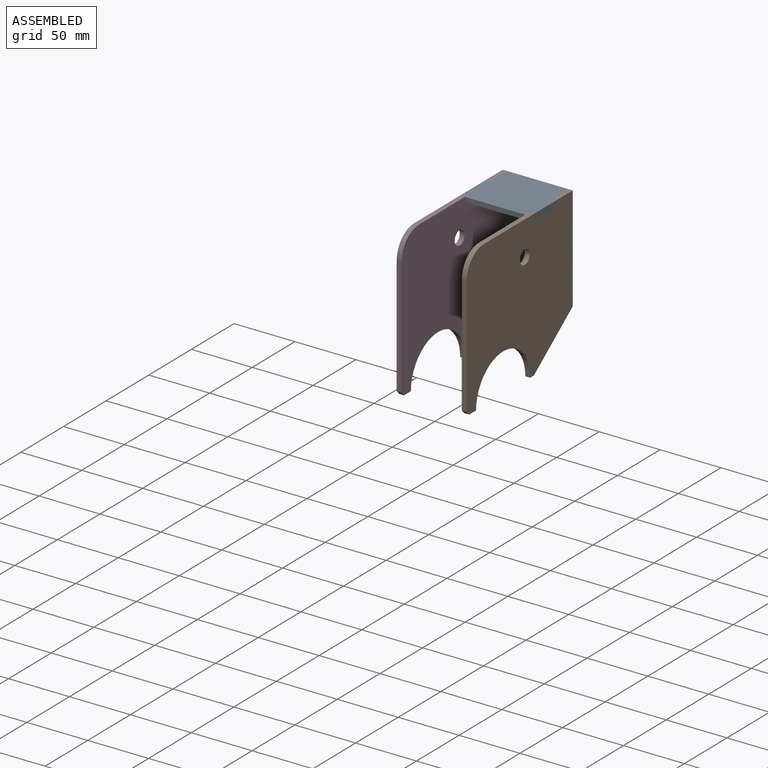
[diagram: assembled view]
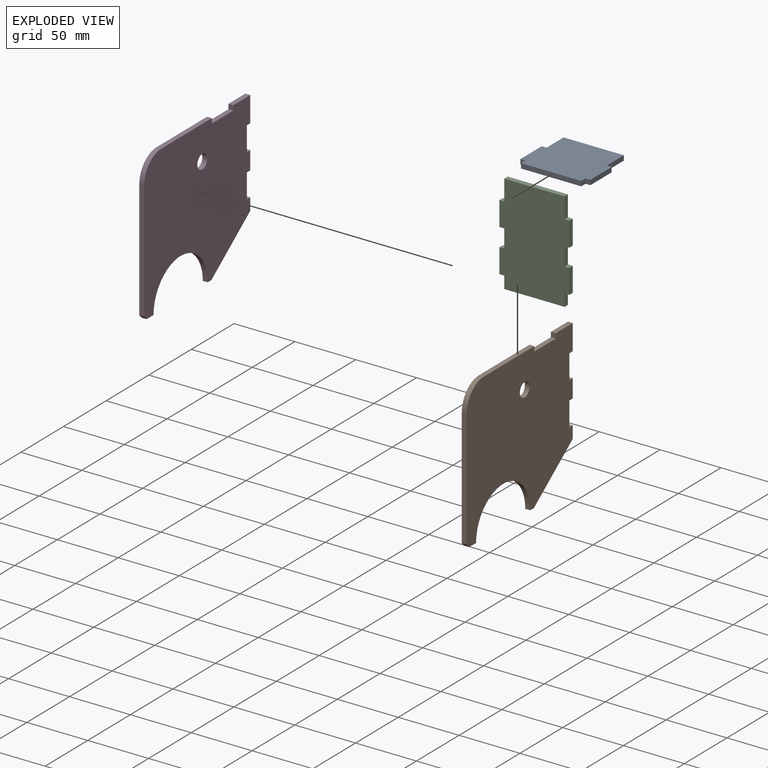
[diagram: exploded view]
GUIDED TOUR — MATED ASSEMBLY (Onshape document 6cddcfc2663b9519ffd29cb2, AutoMate assembly 6cddcfc2663b9519ffd29cb2_9bfa2e58879665fa19792456_93733b2ad54d25d2d5934ae4_default)

This assembly has 4 components, labeled P0..P3 below (a component is one placed occurrence of a part; the same part can appear more than once), held together by 4 mates. A mate is a constraint between two components; its type names the relative motion it leaves free:
  PARALLEL — keeps the two listed directions parallel,
  PLANAR — leaves sliding in the plane through the listed point (normal = the listed direction) and rotation about that normal free.
Axis/direction vectors are unit vectors and 'through' points are millimeter coordinates, both in the assembly's world frame.

MATES
  1. PARALLEL "Parallel 1": P3 <-> P0, direction (0.000, 1.000, 0.000) through (-20.65, 97.90, 61.11) mm
  2. PARALLEL "Parallel 2": P2 <-> P1, direction (0.000, 0.000, 1.000) through (28.85, 107.90, 48.61) mm
  3. PLANAR "Planar 2": P3 <-> P0, direction (0.000, 1.000, 0.000) through (-24.65, 75.40, 57.11) mm
  4. PLANAR "Planar 3": P2 <-> P3, direction (0.000, 0.000, 1.000) through (-20.65, 107.90, 12.61) mm

ASSEMBLY ORDER
  1. P2 — the base component [order verified]
  2. P0 [order verified]
  3. P1 [order verified]
  4. P3 [order verified]
Order-tag legend:
  [order verified] — this step's position reverses a verified removal order: the component was checked to insert without passing through the ones already placed.

Of the 4 components, 4 carry the full construction recipe — the FeatureScript program that regenerates the part's solid from scratch; the rest are supplied as boundary geometry only.
Each toured component is shown spotlighted twice — in the assembled view, then in the exploded view, where a leader line traces a displaced component back to its assembled socket (saturated green if recipe-attached, orange if geometry-only; every other component desaturated gray) — followed by its recipe or geometry summary and the mates that hold it.
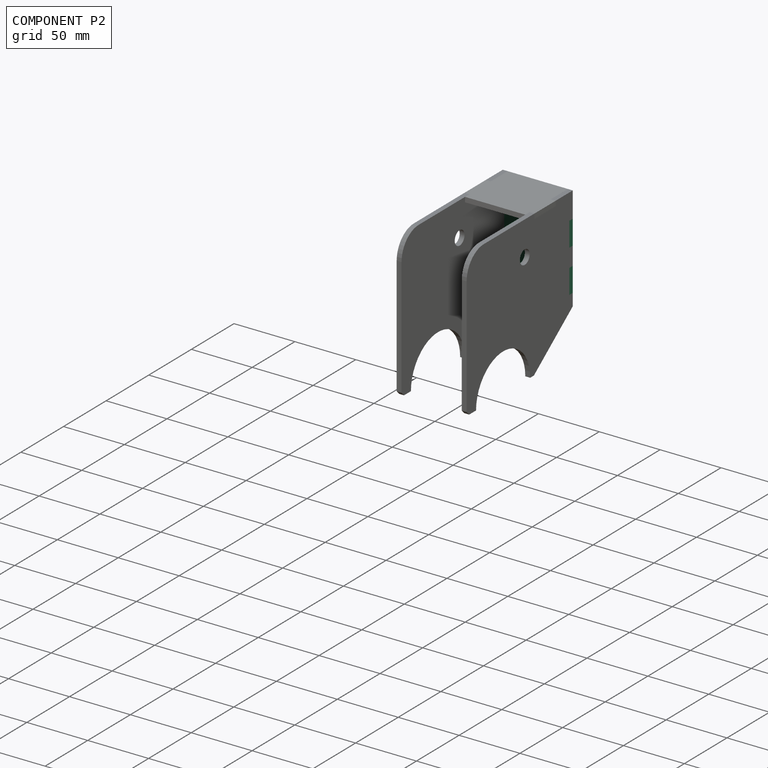
[diagram: component P2 — assembled]
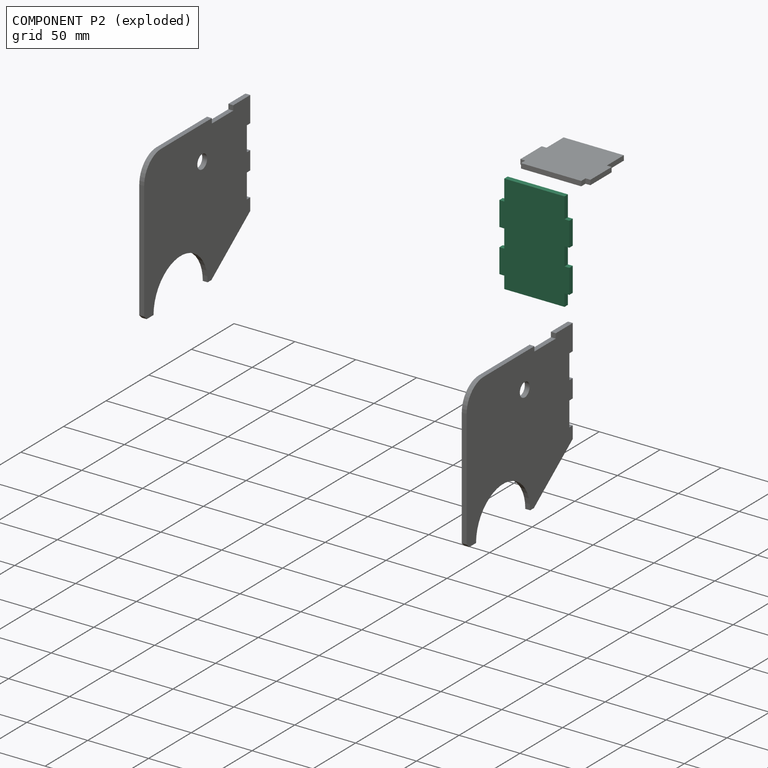
[diagram: component P2 — exploded]
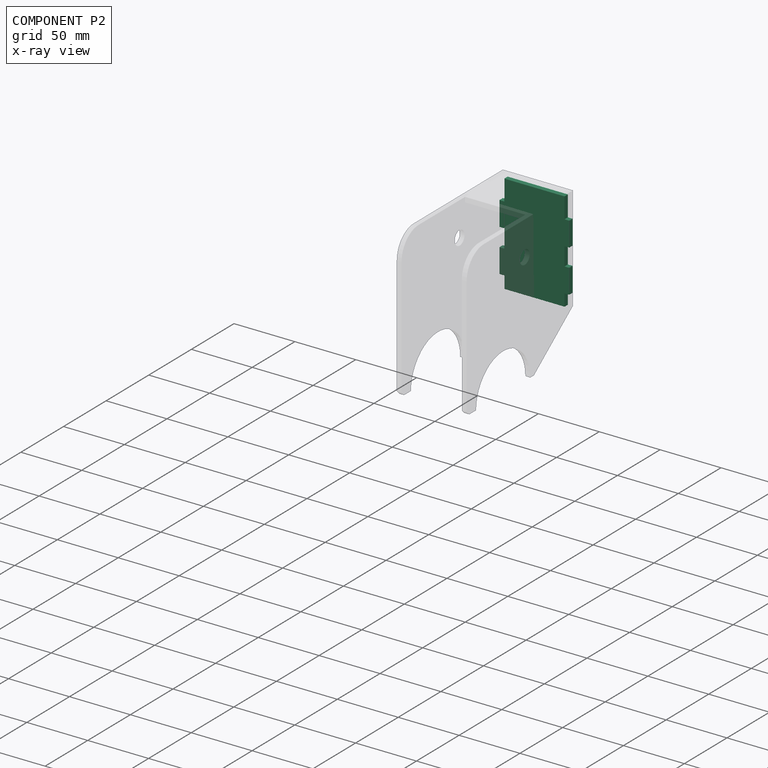
[diagram: component P2 — x-ray view]
COMPONENT P2 — recipe-attached (CADFS 00542748, mesh-verified: the recipe's output STEP matches this component's geometry to below the mesh-comparison resolution (tessellation chordal tolerance ~0.15 mm)).
Held by: PARALLEL mate "Parallel 2" to P1; PLANAR mate "Planar 3" to P3.
Construction recipe (FeatureScript — the CAD program that rebuilds this solid; sketch coordinates are in the units given by the * unit suffixes, e.g. mm):

FeatureScript 1511;
import(path : "onshape/std/geometry.fs", version : "1511.0");
import(path : "onshape/std/common.fs", version : "1511.0");
const mm = millimeter;
const VERTEX = EntityType.VERTEX;
const EDGE = EntityType.EDGE;
const FACE = EntityType.FACE;
const BODY = EntityType.BODY;
function v(x, y){return vector(x, y);}
function OD(order){return orderDisambiguation(order);}
function OSD(set){return originalSetDisambiguation(set);}
function TD(topology){return topologyDisambiguation(topology);}
function TDD(query){return trueDependencyDisambiguation(query);}
function sQuery(a, b, c) {return sketchEntityQuery(a, b, c);}

annotation { "Feature Type Name" : "Feature", "Feature Type Description" : "" }
export const myFeature = defineFeature(function(context is Context, id is Id, definition is map)
    precondition{}
    {
        {
            var Q0;
            Q0=qCreatedBy(makeId("Right.planeOp"),FACE);
            var sketch = newSketch(context, id + "F0", { "sketchPlane" : qUnion([Q0])});
            skLineSegment(sketch, "E0.top", {"start": v(-25.5, -34.8) * mm, "end": v(24, -34.8) * mm});
            skLineSegment(sketch, "E0.left", {"start": v(-25.5, 47.2) * mm, "end": v(-25.5, 37.2) * mm});
            skLineSegment(sketch, "E0.right", {"start": v(24, 47.2) * mm, "end": v(24, 37.2) * mm});
            skLineSegment(sketch, "E1.bottom", {"start": v(-25.5, 37.2) * mm, "end": v(-29.5, 37.2) * mm});
            skLineSegment(sketch, "E1.top", {"start": v(-25.5, 17.2) * mm, "end": v(-29.5, 17.2) * mm});
            skLineSegment(sketch, "E1.right", {"start": v(-29.5, 37.2) * mm, "end": v(-29.5, 17.2) * mm});
            skLineSegment(sketch, "E2.bottom", {"start": v(-25.5, 2.2) * mm, "end": v(-29.5, 2.2) * mm});
            skLineSegment(sketch, "E2.top", {"start": v(-25.5, -17.8) * mm, "end": v(-29.5, -17.8) * mm});
            skLineSegment(sketch, "E2.right", {"start": v(-29.5, 2.2) * mm, "end": v(-29.5, -17.8) * mm});
            skLineSegment(sketch, "E3.bottom", {"start": v(24, 37.2) * mm, "end": v(28, 37.2) * mm});
            skLineSegment(sketch, "E3.top", {"start": v(24, 17.2) * mm, "end": v(28, 17.2) * mm});
            skLineSegment(sketch, "E3.right", {"start": v(28, 37.2) * mm, "end": v(28, 17.2) * mm});
            skLineSegment(sketch, "E4.bottom", {"start": v(24, 2.2) * mm, "end": v(28, 2.2) * mm});
            skLineSegment(sketch, "E4.top", {"start": v(24, -17.8) * mm, "end": v(28, -17.8) * mm});
            skLineSegment(sketch, "E4.right", {"start": v(28, 2.2) * mm, "end": v(28, -17.8) * mm});
            skLineSegment(sketch, "E5.trimOffspring", {"start": v(-25.5, 17.2) * mm, "end": v(-25.5, 2.2) * mm});
            skLineSegment(sketch, "E6.trimOffspring", {"start": v(-25.5, -17.8) * mm, "end": v(-25.5, -34.8) * mm});
            skLineSegment(sketch, "E7.trimOffspring", {"start": v(24, -17.8) * mm, "end": v(24, -34.8) * mm});
            skLineSegment(sketch, "E8", {"start": v(24, 17.2) * mm, "end": v(24, 2.2) * mm});
            skLineSegment(sketch, "E9", {"start": v(-25.5, 47.2) * mm, "end": v(24, 47.2) * mm});
            skSolve(sketch);
        }
        {
            var Q0;
            Q0=makeQuery(id+"F0.imprint","IMPRINT",FACE,{"disambiguationData":[TD([[makeQuery(id+"F0.imprint","IMPRINT",EDGE,{"derivedFrom":sQuery(id+"F0.wireOp",EDGE,"E0.top")}),1.0]])]});
            extrude(context, id + "F1", {"entities" : qUnion([Q0]), "depth" : 4 * mm, "offsetDistance" : 25 * mm});
        }
    });
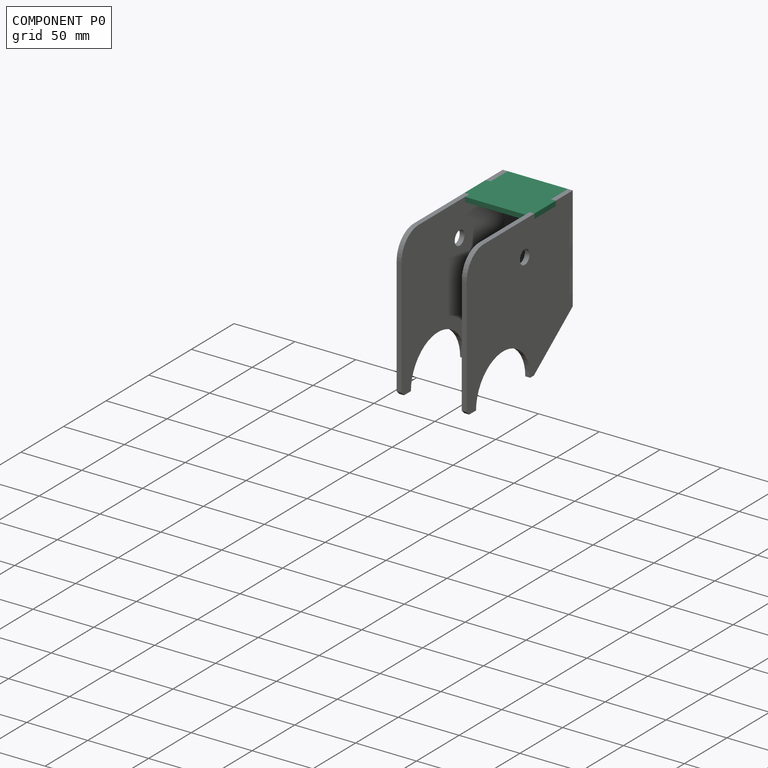
[diagram: component P0 — assembled]
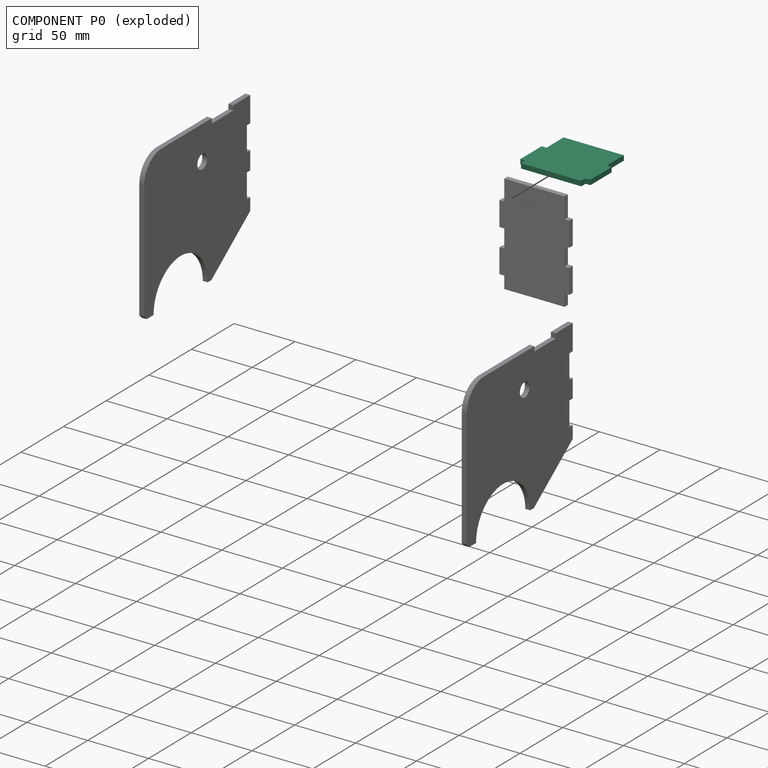
[diagram: component P0 — exploded]
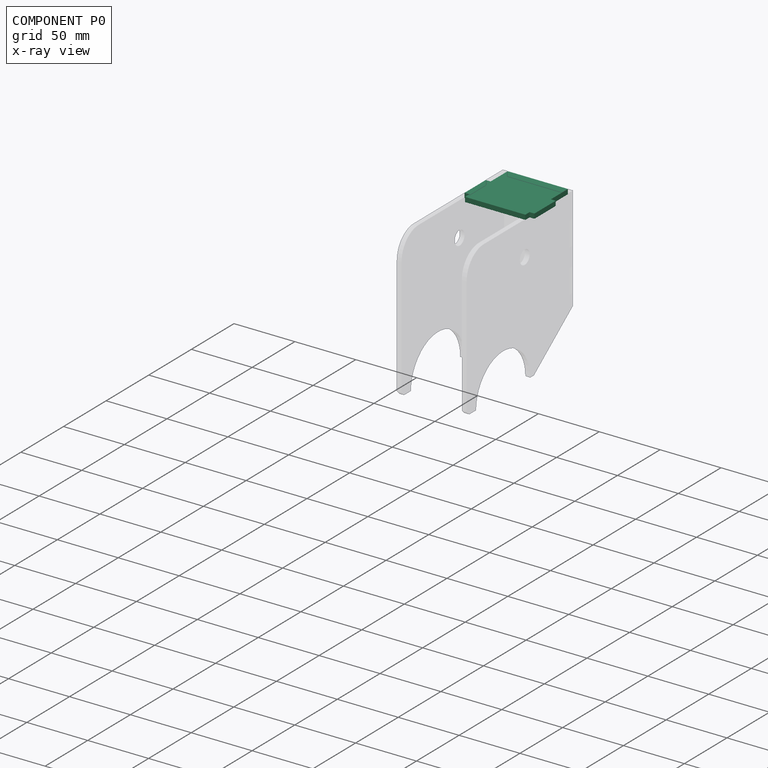
[diagram: component P0 — x-ray view]
COMPONENT P0 — recipe-attached (CADFS 00542747, mesh-verified: the recipe's output STEP matches this component's geometry to below the mesh-comparison resolution (tessellation chordal tolerance ~0.114 mm)).
Held by: PARALLEL mate "Parallel 1" to P3; PLANAR mate "Planar 2" to P3.
Construction recipe (FeatureScript — the CAD program that rebuilds this solid; sketch coordinates are in the units given by the * unit suffixes, e.g. mm):

FeatureScript 1511;
import(path : "onshape/std/geometry.fs", version : "1511.0");
import(path : "onshape/std/common.fs", version : "1511.0");
const mm = millimeter;
const VERTEX = EntityType.VERTEX;
const EDGE = EntityType.EDGE;
const FACE = EntityType.FACE;
const BODY = EntityType.BODY;
function v(x, y){return vector(x, y);}
function OD(order){return orderDisambiguation(order);}
function OSD(set){return originalSetDisambiguation(set);}
function TD(topology){return topologyDisambiguation(topology);}
function TDD(query){return trueDependencyDisambiguation(query);}
function sQuery(a, b, c) {return sketchEntityQuery(a, b, c);}

annotation { "Feature Type Name" : "Feature", "Feature Type Description" : "" }
export const myFeature = defineFeature(function(context is Context, id is Id, definition is map)
    precondition{}
    {
        {
            var Q0;
            Q0=qCreatedBy(makeId("Right.planeOp"),FACE);
            var sketch = newSketch(context, id + "F0", { "sketchPlane" : qUnion([Q0])});
            skLineSegment(sketch, "E0.top", {"start": v(-24.5, -45) * mm, "end": v(25, -45) * mm});
            skLineSegment(sketch, "E1.bottom", {"start": v(-24.5, 0) * mm, "end": v(-28.5, 0) * mm});
            skLineSegment(sketch, "E1.top", {"start": v(-24.5, -25) * mm, "end": v(-28.5, -25) * mm});
            skLineSegment(sketch, "E1.right", {"start": v(-28.5, 0) * mm, "end": v(-28.5, -25) * mm});
            skLineSegment(sketch, "E2.bottom", {"start": v(25, 0) * mm, "end": v(29, 0) * mm});
            skLineSegment(sketch, "E2.top", {"start": v(25, -25) * mm, "end": v(29, -25) * mm});
            skLineSegment(sketch, "E2.right", {"start": v(29, 0) * mm, "end": v(29, -25) * mm});
            skLineSegment(sketch, "E3.trimOffspring", {"start": v(-24.5, 5) * mm, "end": v(-24.5, 0) * mm});
            skLineSegment(sketch, "E4.trimOffspring", {"start": v(-24.5, -25) * mm, "end": v(-24.5, -45) * mm});
            skLineSegment(sketch, "E5.trimOffspring", {"start": v(25, 5) * mm, "end": v(25, 0) * mm});
            skLineSegment(sketch, "E6.trimOffspring", {"start": v(25, -25) * mm, "end": v(25, -45) * mm});
            skLineSegment(sketch, "E7", {"start": v(-24.5, 5) * mm, "end": v(25, 5) * mm});
            skSolve(sketch);
        }
        {
            var Q0;
            Q0 = qSketchRegion(id + "F0", true);
            extrude(context, id + "F1", {"entities" : qUnion([Q0]), "depth" : 4 * mm, "offsetDistance" : 25 * mm});
        }
    });
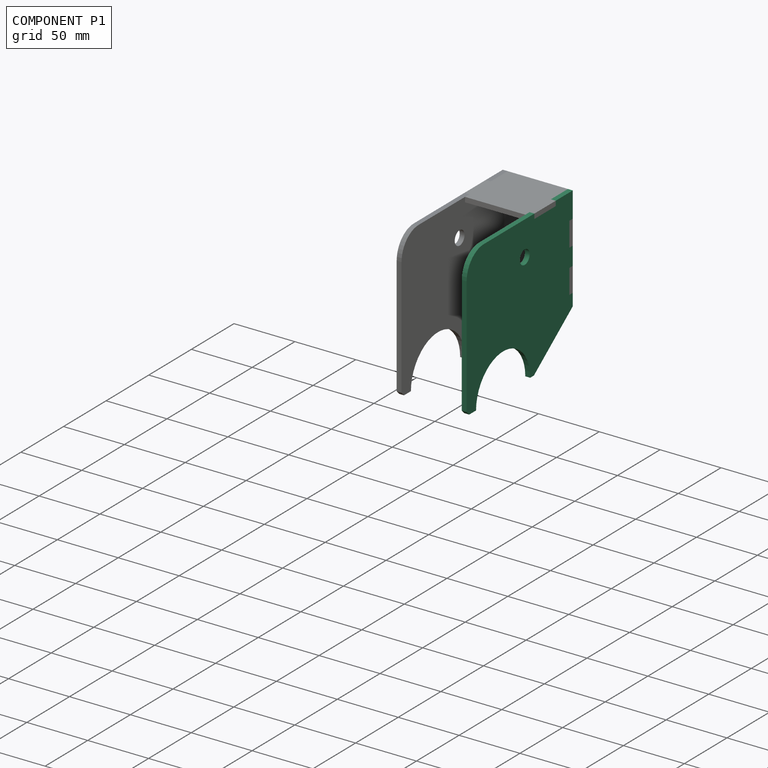
[diagram: component P1 — assembled]
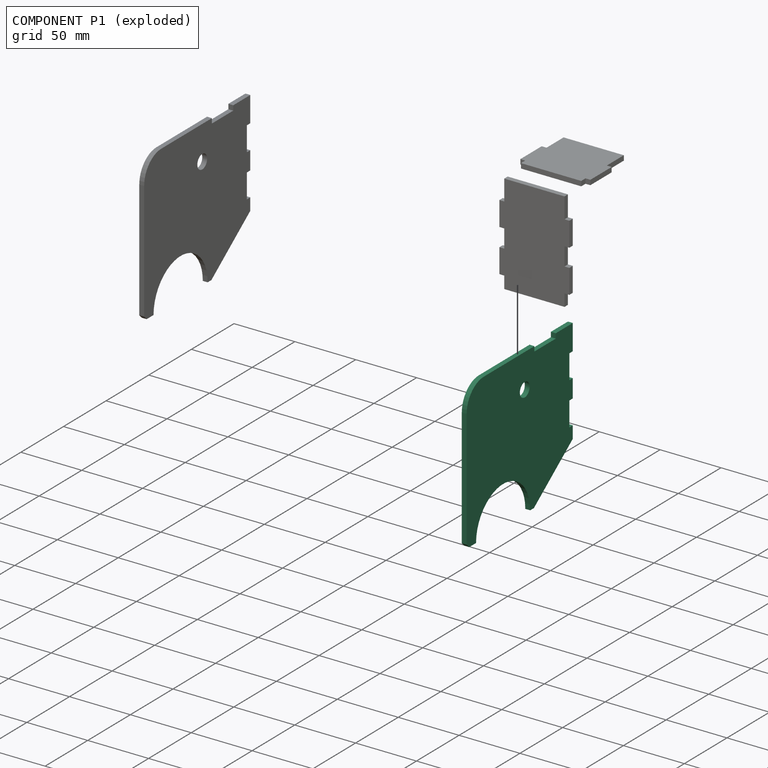
[diagram: component P1 — exploded]
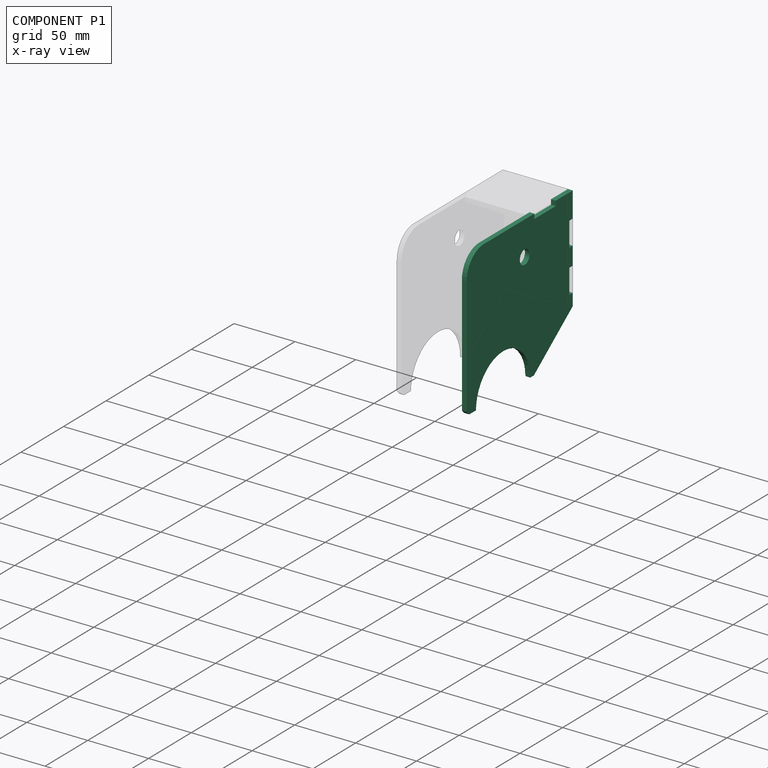
[diagram: component P1 — x-ray view]
COMPONENT P1 — recipe-attached (CADFS 00542749, mesh-verified: the recipe's output STEP matches this component's geometry to below the mesh-comparison resolution (tessellation chordal tolerance ~0.259 mm)).
Held by: PARALLEL mate "Parallel 2" to P2.
Construction recipe (FeatureScript — the CAD program that rebuilds this solid; sketch coordinates are in the units given by the * unit suffixes, e.g. mm):

FeatureScript 1511;
import(path : "onshape/std/geometry.fs", version : "1511.0");
import(path : "onshape/std/common.fs", version : "1511.0");
const mm = millimeter;
const VERTEX = EntityType.VERTEX;
const EDGE = EntityType.EDGE;
const FACE = EntityType.FACE;
const BODY = EntityType.BODY;
function v(x, y){return vector(x, y);}
function OD(order){return orderDisambiguation(order);}
function OSD(set){return originalSetDisambiguation(set);}
function TD(topology){return topologyDisambiguation(topology);}
function TDD(query){return trueDependencyDisambiguation(query);}
function sQuery(a, b, c) {return sketchEntityQuery(a, b, c);}

annotation { "Feature Type Name" : "Feature", "Feature Type Description" : "" }
export const myFeature = defineFeature(function(context is Context, id is Id, definition is map)
    precondition{}
    {
        {
            var Q0;
            Q0=qCreatedBy(makeId("Right.planeOp"),FACE);
            var sketch = newSketch(context, id + "F0", { "sketchPlane" : qUnion([Q0])});
            skArc(sketch, "E0", {"start": v(2.7, -74.14) * mm, "mid": v(-29.05, -42.41) * mm, "end": v(-60.8, -74.16) * mm});
            skLineSegment(sketch, "E1", {"start": v(-60.8, -74.16) * mm, "end": v(-68.8, -74.16) * mm});
            skLineSegment(sketch, "E2", {"start": v(52.7, 45.84) * mm, "end": v(52.7, 24.84) * mm});
            skCircle(sketch, "E3", {"center": v(-3.64, 17.84) * mm, "radius": 5.75 * mm});
            skPoint(sketch, "E4.orphan", {"position": v(52.7, -75.1) * mm});
            skLineSegment(sketch, "E5", {"start": v(-71.8, -71.16) * mm, "end": v(-68.8, -74.16) * mm});
            skPoint(sketch, "E6.orphan", {"position": v(-71.8, 45.84) * mm});
            skLineSegment(sketch, "E7.top", {"start": v(7.7, 41.84) * mm, "end": v(32.7, 41.84) * mm});
            skLineSegment(sketch, "E7.left", {"start": v(7.7, 45.84) * mm, "end": v(7.7, 41.84) * mm});
            skLineSegment(sketch, "E7.right", {"start": v(32.7, 45.84) * mm, "end": v(32.7, 41.84) * mm});
            skLineSegment(sketch, "E8.trimOffspring", {"start": v(32.7, 45.84) * mm, "end": v(52.7, 45.84) * mm});
            skLineSegment(sketch, "E9.bottom", {"start": v(52.7, 24.84) * mm, "end": v(48.7, 24.84) * mm});
            skLineSegment(sketch, "E9.top", {"start": v(52.7, 4.84) * mm, "end": v(48.7, 4.84) * mm});
            skLineSegment(sketch, "E9.right", {"start": v(48.7, 24.84) * mm, "end": v(48.7, 4.84) * mm});
            skLineSegment(sketch, "E10.bottom", {"start": v(52.7, -10.16) * mm, "end": v(48.7, -10.16) * mm});
            skLineSegment(sketch, "E10.top", {"start": v(52.7, -30.16) * mm, "end": v(48.7, -30.16) * mm});
            skLineSegment(sketch, "E10.right", {"start": v(48.7, -10.16) * mm, "end": v(48.7, -30.16) * mm});
            skLineSegment(sketch, "E11", {"start": v(-71.8, 25.84) * mm, "end": v(-71.8, -71.16) * mm});
            skLineSegment(sketch, "E12.trimOffspring", {"start": v(52.7, -30.16) * mm, "end": v(52.7, -40.16) * mm});
            skLineSegment(sketch, "E13", {"start": v(52.7, 4.84) * mm, "end": v(52.7, -10.16) * mm});
            skLineSegment(sketch, "E14", {"start": v(-51.8, 45.84) * mm, "end": v(7.7, 45.84) * mm});
            skLineSegment(sketch, "E15", {"start": v(2.7, -74.14) * mm, "end": v(7.1, -74.14) * mm});
            skLineSegment(sketch, "E16", {"start": v(7.1, -74.14) * mm, "end": v(52.7, -40.16) * mm});
            skArc(sketch, "E17", {"start": v(-51.8, 45.84) * mm, "mid": v(-65.93, 39.98) * mm, "end": v(-71.8, 25.84) * mm});
            skSolve(sketch);
        }
        {
            var Q0;
            Q0=makeQuery(id+"F0.imprint","IMPRINT",FACE,{"disambiguationData":[TD([[makeQuery(id+"F0.imprint","IMPRINT",EDGE,{"derivedFrom":sQuery(id+"F0.wireOp",EDGE,"E0")}),-1.0]])]});
            extrude(context, id + "F1", {"entities" : qUnion([Q0]), "depth" : 4 * mm, "offsetDistance" : 25 * mm});
        }
    });
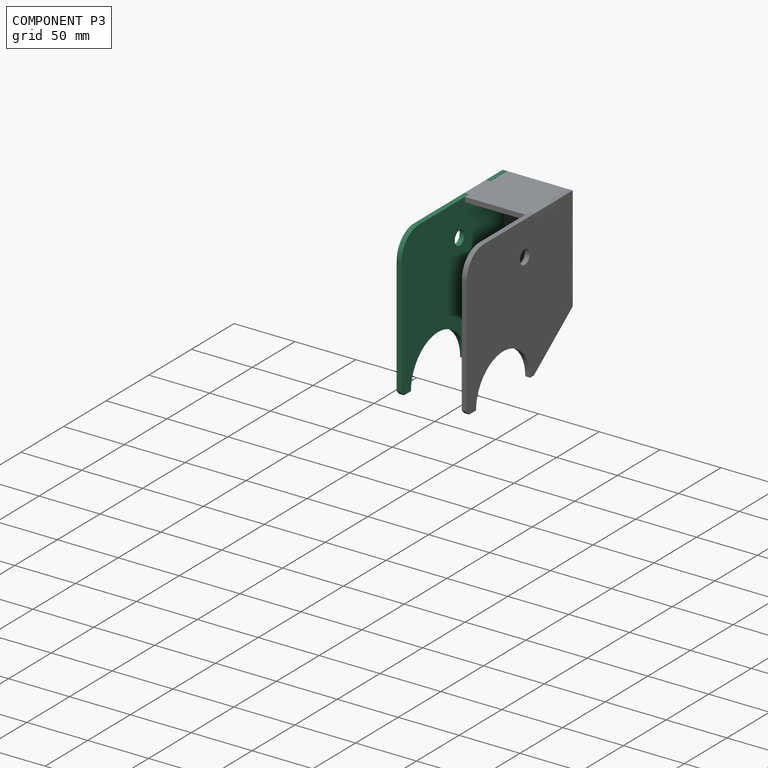
[diagram: component P3 — assembled]
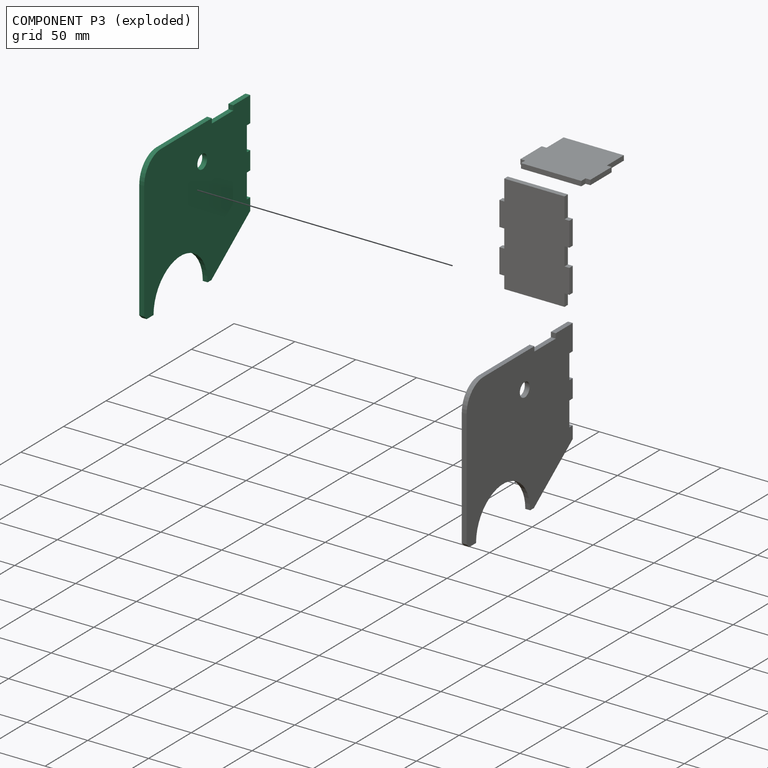
[diagram: component P3 — exploded]
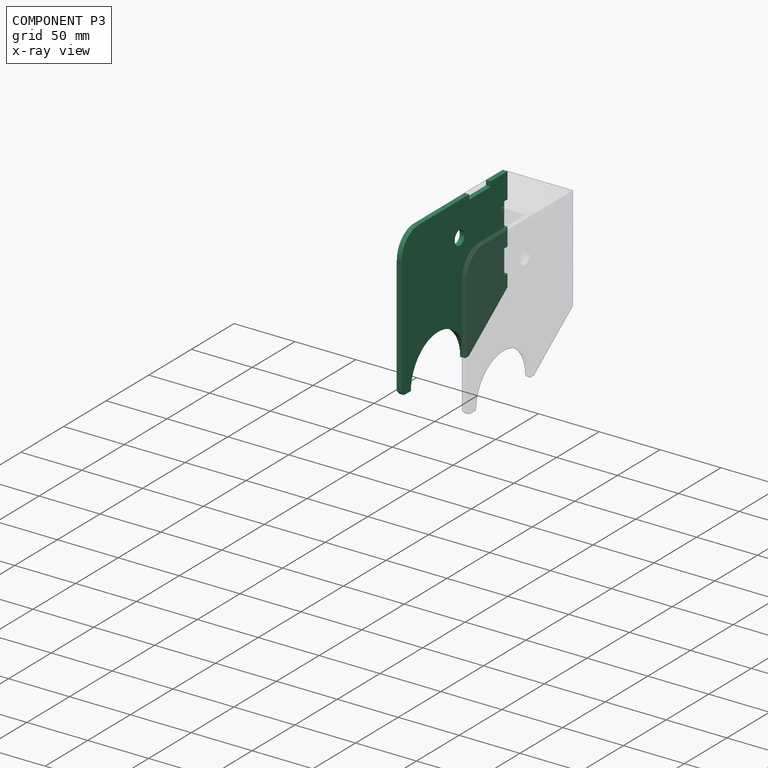
[diagram: component P3 — x-ray view]
COMPONENT P3 — same part as P1 (CADFS 00542749); its construction recipe is shown at P1.
Held by: PARALLEL mate "Parallel 1" to P0; PLANAR mate "Planar 2" to P0; PLANAR mate "Planar 3" to P2.
PROVENANCE & LICENSES
Assembly (occurrences, transforms, mates, per-part STEP geometry): AutoMate dataset, Zenodo record 7776208, CC0.
Construction recipes: CADFS (HuggingFace VladPyatov/CADFS, CC-BY-4.0, layered over the ABC dataset), FeatureScript reconstruction programs keyed by ABC model id.
Join: ABC meta listings map ABC model id -> Onshape documentId; within a shared document, parts are matched by geometric signature (bounding-box dims + volume at 0.1% relative tolerance, exact B-rep face/solid counts).
Verification: 4 of this assembly's 4 components carry a recipe attachment, and every attachment is mesh-verified: the CADFS STEP and the AutoMate member STEP were compared as meshes in their shared local frame (symmetric sampled-point-to-mesh distance); worst across the 4 attachments: below the mesh-comparison resolution (tessellation chordal tolerance ~0.259 mm) on a 173 mm part.
Renders: orthographic iso camera (az 35 / el 25); the floor grid conveys scale (grid pitch printed in each image; no ruler). In the exploded view each component is displaced by its stored offset vector: the offsets alone carry the explosion direction (mate normal/axis signs are not orientation cues and do not encode it), and separation distances are assigned per mate-chain, not proportionally to assembly-order depth.
